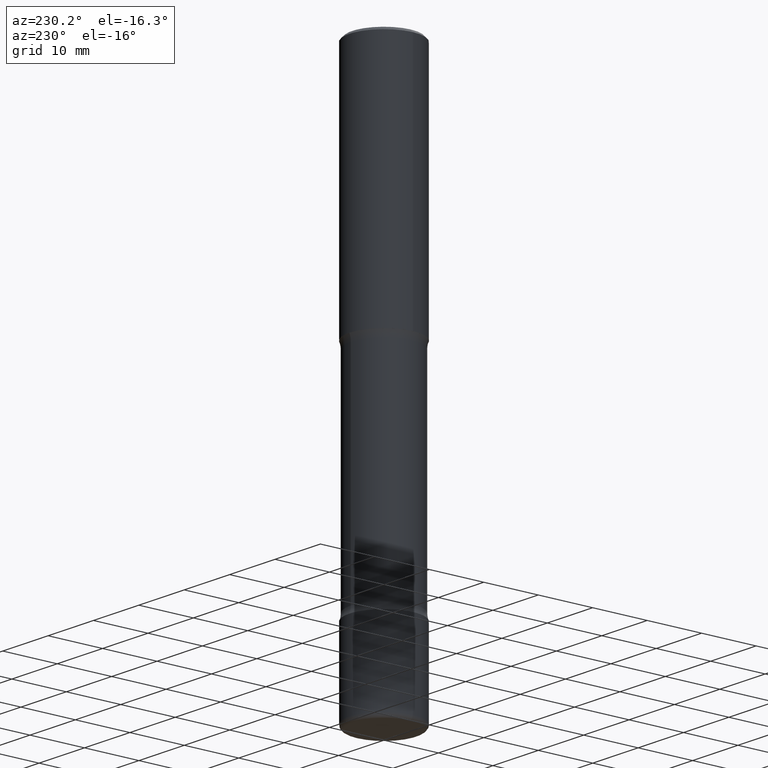
[diagram: clean part render]
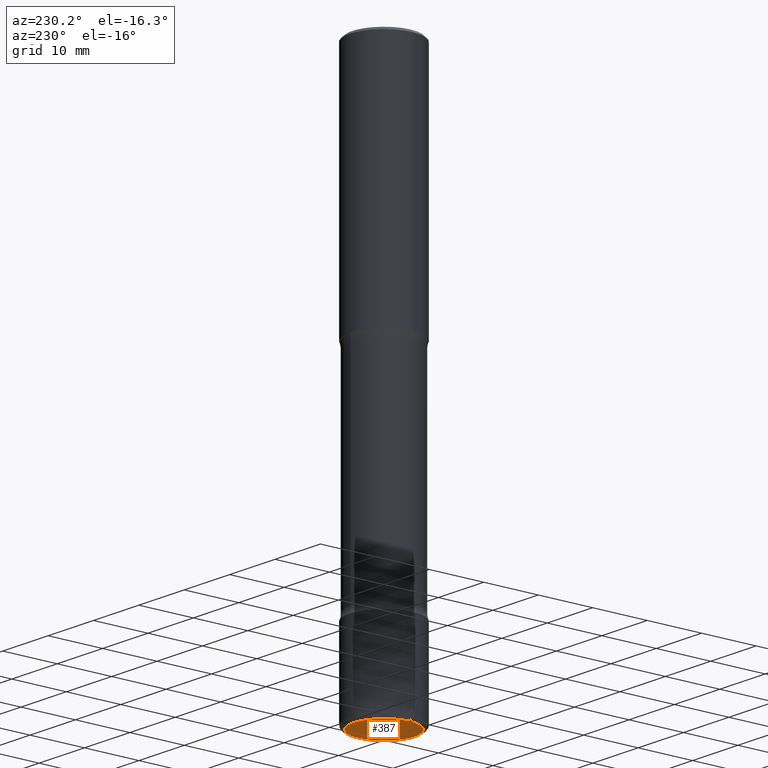
[diagram: same view with one face highlighted and labeled with its STEP entity id]
A machine part, auxiliary view. The second image highlights one B-rep face of the part: STEP entity #387.
In plain terms, the highlighted planar face has unit normal (0, -0, -1).
Its self-contained STEP definition (entity closure, byte-faithful):
#20 = EDGE_CURVE ( 'NONE', #173, #62, #224, .T. ) ;
#62 = VERTEX_POINT ( 'NONE', #245 ) ;
#131 = AXIS2_PLACEMENT_3D ( 'NONE', #443, #402, #316 ) ;
#144 = FACE_OUTER_BOUND ( 'NONE', #246, .T. ) ;
#173 = VERTEX_POINT ( 'NONE', #310 ) ;
#204 = AXIS2_PLACEMENT_3D ( 'NONE', #533, #363, #503 ) ;
#224 = CIRCLE ( 'NONE', #542, 0.2200000000000003619 ) ;
#233 = ORIENTED_EDGE ( 'NONE', *, *, #20, .F. ) ;
#245 = CARTESIAN_POINT ( 'NONE',  ( 0.2200000000000003619, -1.550217714446356385E-14, -4.000000000000000000 ) ) ;
#246 = EDGE_LOOP ( 'NONE', ( #524, #233 ) ) ;
#248 = CARTESIAN_POINT ( 'NONE',  ( 9.781875224740546387E-29, -1.396592535537258233E-14, -4.000000000000000000 ) ) ;
#310 = CARTESIAN_POINT ( 'NONE',  ( -0.2200000000000003619, -1.224377770625369636E-14, -4.000000000000000000 ) ) ;
#316 = DIRECTION ( 'NONE',  ( 1.000000000000000000, -6.982962677686268288E-15, 0.000000000000000000 ) ) ;
#348 = EDGE_CURVE ( 'NONE', #62, #173, #534, .T. ) ;
#363 = DIRECTION ( 'NONE',  ( 2.438088387897960049E-29, -3.491481338843145188E-15, -1.000000000000000000 ) ) ;
#387 = ADVANCED_FACE ( 'NONE', ( #144 ), #411, .T. ) ;
#402 = DIRECTION ( 'NONE',  ( -2.445468806185136597E-29, 3.491481338843145583E-15, 1.000000000000000000 ) ) ;
#411 = PLANE ( 'NONE',  #204 ) ;
#443 = CARTESIAN_POINT ( 'NONE',  ( 9.781875224740546387E-29, -1.396592535537258233E-14, -4.000000000000000000 ) ) ;
#452 = DIRECTION ( 'NONE',  ( -2.445468806185136597E-29, 3.491481338843145583E-15, 1.000000000000000000 ) ) ;
#503 = DIRECTION ( 'NONE',  ( -1.000000000000000000, 6.982962677686265922E-15, -4.876176775795935793E-29 ) ) ;
#511 = DIRECTION ( 'NONE',  ( 1.000000000000000000, -6.982962677686268288E-15, 0.000000000000000000 ) ) ;
#524 = ORIENTED_EDGE ( 'NONE', *, *, #348, .F. ) ;
#533 = CARTESIAN_POINT ( 'NONE',  ( 2.365561528355480756E-28, 5.902060053094732386E-15, -4.000000000000000888 ) ) ;
#534 = CIRCLE ( 'NONE', #131, 0.2200000000000003619 ) ;
#542 = AXIS2_PLACEMENT_3D ( 'NONE', #248, #452, #511 ) ;